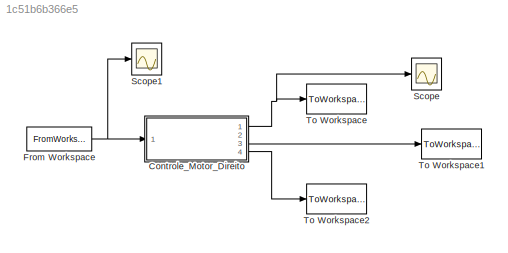
MODEL slx_1c51b6b366e5
KIND model
CONFIG AbsTol = auto
CONFIG EnableMultiTasking = off
CONFIG FixedStep = auto
CONFIG MaxStep = auto
CONFIG MinStep = auto
CONFIG RelTol = 1e-3
CONFIG SampleTimeConstraint = Unconstrained
CONFIG Solver = VariableStepAuto
CONFIG SolverName = VariableStepAuto
CONFIG StartTime = 0.0
CONFIG StopTime = 7.0
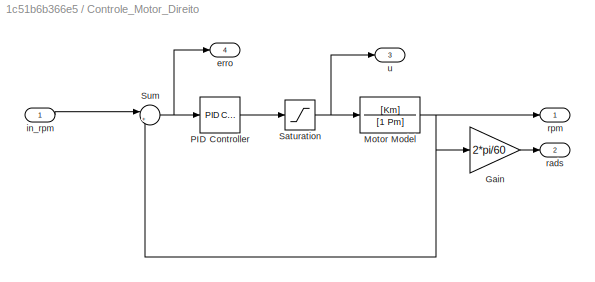
BLOCK [SubSystem] Controle_Motor_Direito
  Ports = [1, 4]
  RequestExecContextInheritance = off
BLOCK [Gain] Controle_Motor_Direito/Gain
  Gain = 2*pi/60
  OutDataTypeStr = Inherit: Inherit via internal rule
  ParamDataTypeStr = Inherit: Inherit via internal rule
  SaturateOnIntegerOverflow = off
BLOCK [TransferFcn] Controle_Motor_Direito/Motor Model
  Denominator = [1 Pm]
  Numerator = [Km]
BLOCK [Reference] Controle_Motor_Direito/PID Controller  REF=simulink/Continuous/PID Controller
  Ports = [1, 1]
  SourceBlock = simulink/Continuous/PID Controller
  SourceProductBaseCode = SL
  SourceProductName = Simulink
  SourceType = PID 1dof
BLOCK [Saturate] Controle_Motor_Direito/Saturation
  InputPortMap = u0
  LowerLimit = -100
  Ports = [1, 1]
  UpperLimit = 100
BLOCK [Sum] Controle_Motor_Direito/Sum
  IconShape = round
  InputSameDT = off
  Inputs = |+-
  OutDataTypeStr = Inherit: Inherit via internal rule
  Ports = [2, 1]
  SaturateOnIntegerOverflow = off
BLOCK [Outport] Controle_Motor_Direito/erro
  IconDisplay = Port number
  Port = 4
BLOCK [Inport] Controle_Motor_Direito/in_rpm
  IconDisplay = Port number
BLOCK [Outport] Controle_Motor_Direito/rads
  IconDisplay = Port number
  Port = 2
BLOCK [Outport] Controle_Motor_Direito/rpm
  IconDisplay = Port number
BLOCK [Outport] Controle_Motor_Direito/u
  IconDisplay = Port number
  Port = 3
BLOCK [FromWorkspace] From Workspace
  SampleTime = Ts
  VariableName = input_simulink
  ZeroCross = on
BLOCK [Scope] Scope
  Floating = off
  NumInputPorts = 1
  Ports = [1]
  ScopeSpecificationString = Simulink.scopes.TimeScopeBlockCfg('CurrentConfiguration', extmgr.ConfigurationSet(extmgr.Configuration('Core','General UI',true),extmgr.Configuration('Core','Source UI',true),extmgr.Configuration('Sources','WiredSimulink',true),extmgr.Configuration('Visuals','Time Domain',true,'SerializedDisplays',{struct('MinYLimReal','-275.00000','MaxYLimReal','2475.00000','YLabelReal','','MinYLimMag',' 0.00000'...<+1362ch>
BLOCK [Scope] Scope1
  Floating = off
  NumInputPorts = 1
  Ports = [1]
  ScopeSpecificationString = Simulink.scopes.TimeScopeBlockCfg('CurrentConfiguration', extmgr.ConfigurationSet(extmgr.Configuration('Core','General UI',true),extmgr.Configuration('Core','Source UI',true),extmgr.Configuration('Sources','WiredSimulink',true,'DataLoggingVariableName','ScopeData1'),extmgr.Configuration('Visuals','Time Domain',true,'SerializedDisplays',{struct('MinYLimReal','-275.00000','MaxYLimReal','2475.00000',...<+1391ch>
BLOCK [ToWorkspace] To Workspace
  FixptAsFi = on
  MaxDataPoints = inf
  Ports = [1]
  SampleTime = Ts
  Save2DSignal = 2-D array (concatenate along first dimension)
  VariableName = resp_modelo_RPM
BLOCK [ToWorkspace] To Workspace1
  FixptAsFi = on
  MaxDataPoints = inf
  Ports = [1]
  SampleTime = Ts
  Save2DSignal = 2-D array (concatenate along first dimension)
  VariableName = resp_modelo_U
BLOCK [ToWorkspace] To Workspace2
  FixptAsFi = on
  MaxDataPoints = inf
  Ports = [1]
  SampleTime = Ts
  Save2DSignal = 2-D array (concatenate along first dimension)
  VariableName = resp_modelo_Erro
LINE Controle_Motor_Direito/Gain:1 -> Controle_Motor_Direito/rads:1
NET Controle_Motor_Direito/Motor Model:1 -> Controle_Motor_Direito/Gain:1, Controle_Motor_Direito/Sum:2, Controle_Motor_Direito/rpm:1
LINE Controle_Motor_Direito/PID Controller:1 -> Controle_Motor_Direito/Saturation:1
NET Controle_Motor_Direito/Saturation:1 -> Controle_Motor_Direito/Motor Model:1, Controle_Motor_Direito/u:1
NET Controle_Motor_Direito/Sum:1 -> Controle_Motor_Direito/PID Controller:1, Controle_Motor_Direito/erro:1
LINE Controle_Motor_Direito/in_rpm:1 -> Controle_Motor_Direito/Sum:1
NET Controle_Motor_Direito:1 -> Scope:1, To Workspace:1
LINE Controle_Motor_Direito:3 -> To Workspace1:1
LINE Controle_Motor_Direito:4 -> To Workspace2:1
NET From Workspace:1 -> Controle_Motor_Direito:1, Scope1:1
note: NET lines group one-source signal fan-out (src -> all destinations, sorted); 1:1 wires keep LINE
